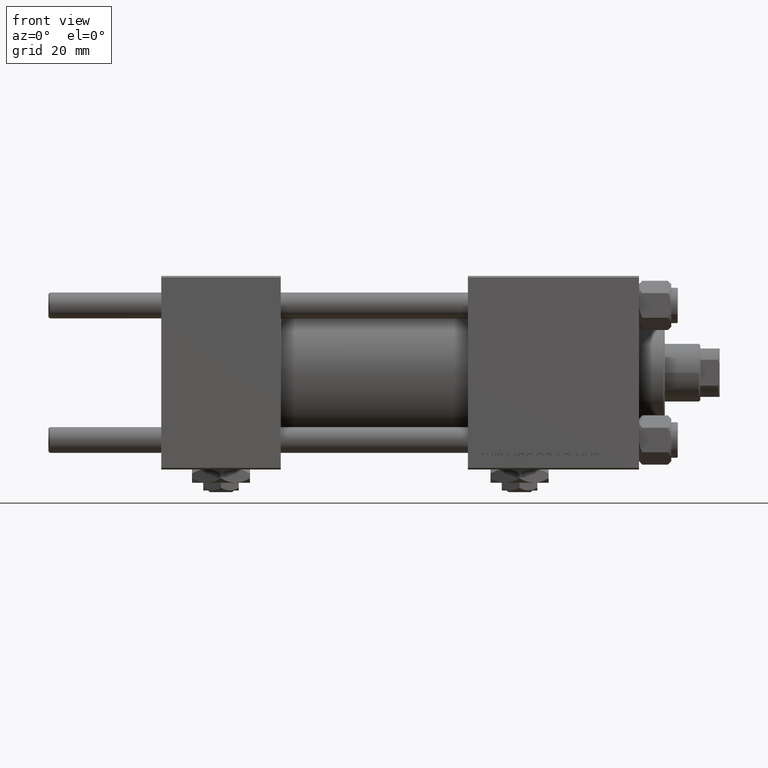
[diagram: clean part render]
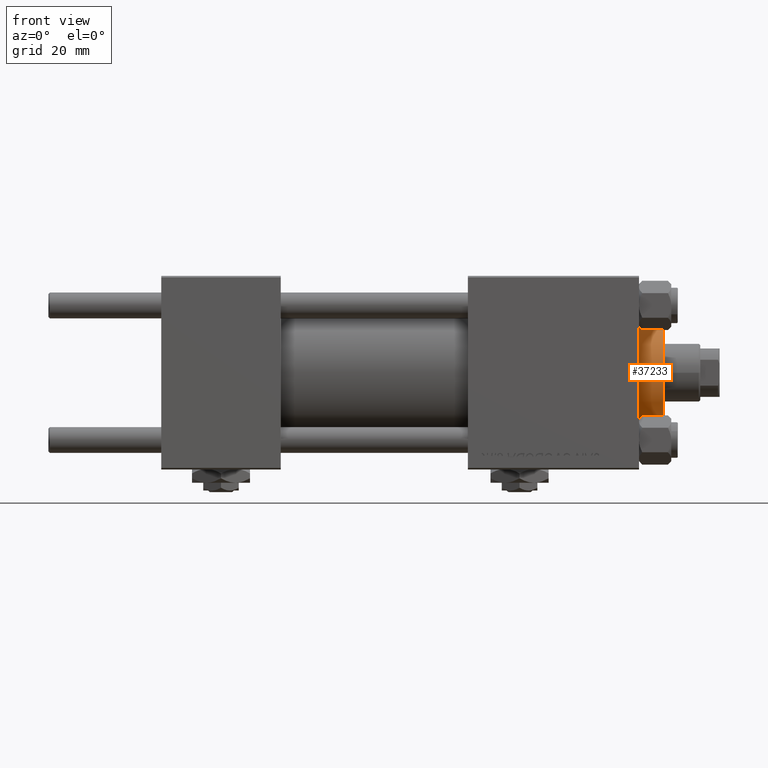
[diagram: same view with one face highlighted and labeled with its STEP entity id]
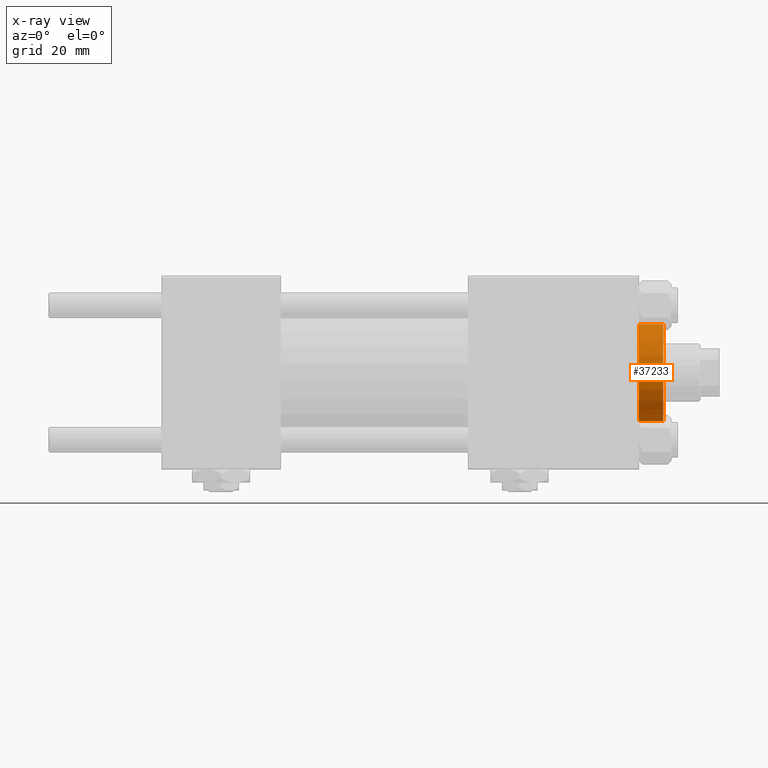
[diagram: x-ray of the same camera — body ghosted, the highlighted face saturated]
A machine part, front view. The second image highlights one B-rep face of the part: STEP entity #37233.
The next image is the same camera in x-ray: the body ghosted, the highlighted face saturated — about 0% of this face is hidden behind the body in this view.
In plain terms, the highlighted cylindrical surface (partial cylindrical patch) has radius 15 mm, axis along (-1, -0, 0).
Its self-contained STEP definition (entity closure, byte-faithful):
#367 = EDGE_CURVE ( 'NONE', #13089, #23460, #39994, .T. ) ;
#3281 = DIRECTION ( 'NONE',  ( 0.000000000000000000, 0.000000000000000000, -1.000000000000000000 ) ) ;
#4510 = ORIENTED_EDGE ( 'NONE', *, *, #367, .T. ) ;
#4844 = CARTESIAN_POINT ( 'NONE',  ( -15.00000000000000000, 0.000000000000000000, 28.69999999999999929 ) ) ;
#5704 = DIRECTION ( 'NONE',  ( 1.000000000000000000, 0.000000000000000000, 0.000000000000000000 ) ) ;
#9232 = EDGE_CURVE ( 'NONE', #13089, #51068, #47712, .T. ) ;
#10835 = VERTEX_POINT ( 'NONE', #4844 ) ;
#12227 = DIRECTION ( 'NONE',  ( -0.000000000000000000, -0.000000000000000000, -1.000000000000000000 ) ) ;
#13089 = VERTEX_POINT ( 'NONE', #21016 ) ;
#13309 = DIRECTION ( 'NONE',  ( 0.000000000000000000, 0.000000000000000000, 1.000000000000000000 ) ) ;
#14943 = VECTOR ( 'NONE', #37187, 1000.000000000000000 ) ;
#17552 = EDGE_CURVE ( 'NONE', #10835, #51068, #49748, .T. ) ;
#21016 = CARTESIAN_POINT ( 'NONE',  ( 15.00000000000000000, 1.836970198721029589E-15, 36.20000000000000284 ) ) ;
#21169 = FACE_OUTER_BOUND ( 'NONE', #48272, .T. ) ;
#22915 = AXIS2_PLACEMENT_3D ( 'NONE', #45637, #13309, #5704 ) ;
#23460 = VERTEX_POINT ( 'NONE', #26232 ) ;
#24863 = CARTESIAN_POINT ( 'NONE',  ( -15.00000000000000000, 0.000000000000000000, 36.69999999999999574 ) ) ;
#25116 = DIRECTION ( 'NONE',  ( -0.000000000000000000, -0.000000000000000000, -1.000000000000000000 ) ) ;
#26232 = CARTESIAN_POINT ( 'NONE',  ( -15.00000000000000000, 0.000000000000000000, 36.20000000000000284 ) ) ;
#29313 = CYLINDRICAL_SURFACE ( 'NONE', #48724, 15.00000000000000000 ) ;
#30948 = EDGE_CURVE ( 'NONE', #23460, #10835, #44813, .T. ) ;
#31887 = DIRECTION ( 'NONE',  ( 1.000000000000000000, 0.000000000000000000, 0.000000000000000000 ) ) ;
#34373 = CARTESIAN_POINT ( 'NONE',  ( 15.00000000000000000, 1.836970198721029589E-15, 28.69999999999999929 ) ) ;
#37184 = DIRECTION ( 'NONE',  ( -1.000000000000000000, 0.000000000000000000, 0.000000000000000000 ) ) ;
#37187 = DIRECTION ( 'NONE',  ( -0.000000000000000000, -0.000000000000000000, -1.000000000000000000 ) ) ;
#37233 = ADVANCED_FACE ( 'NONE', ( #21169 ), #29313, .T. ) ;
#37569 = ORIENTED_EDGE ( 'NONE', *, *, #17552, .T. ) ;
#39994 = CIRCLE ( 'NONE', #47583, 15.00000000000000000 ) ;
#40598 = CARTESIAN_POINT ( 'NONE',  ( 0.000000000000000000, 0.000000000000000000, 36.69999999999999574 ) ) ;
#42740 = VECTOR ( 'NONE', #12227, 1000.000000000000000 ) ;
#43509 = CARTESIAN_POINT ( 'NONE',  ( 15.00000000000000000, 1.836970198721029589E-15, 36.69999999999999574 ) ) ;
#44813 = LINE ( 'NONE', #24863, #14943 ) ;
#45637 = CARTESIAN_POINT ( 'NONE',  ( 0.000000000000000000, 0.000000000000000000, 28.69999999999999929 ) ) ;
#47583 = AXIS2_PLACEMENT_3D ( 'NONE', #51595, #3281, #31887 ) ;
#47712 = LINE ( 'NONE', #43509, #42740 ) ;
#48272 = EDGE_LOOP ( 'NONE', ( #49173, #4510, #51735, #37569 ) ) ;
#48724 = AXIS2_PLACEMENT_3D ( 'NONE', #40598, #25116, #37184 ) ;
#49173 = ORIENTED_EDGE ( 'NONE', *, *, #9232, .F. ) ;
#49748 = CIRCLE ( 'NONE', #22915, 15.00000000000000000 ) ;
#51068 = VERTEX_POINT ( 'NONE', #34373 ) ;
#51595 = CARTESIAN_POINT ( 'NONE',  ( 0.000000000000000000, 0.000000000000000000, 36.20000000000000284 ) ) ;
#51735 = ORIENTED_EDGE ( 'NONE', *, *, #30948, .T. ) ;